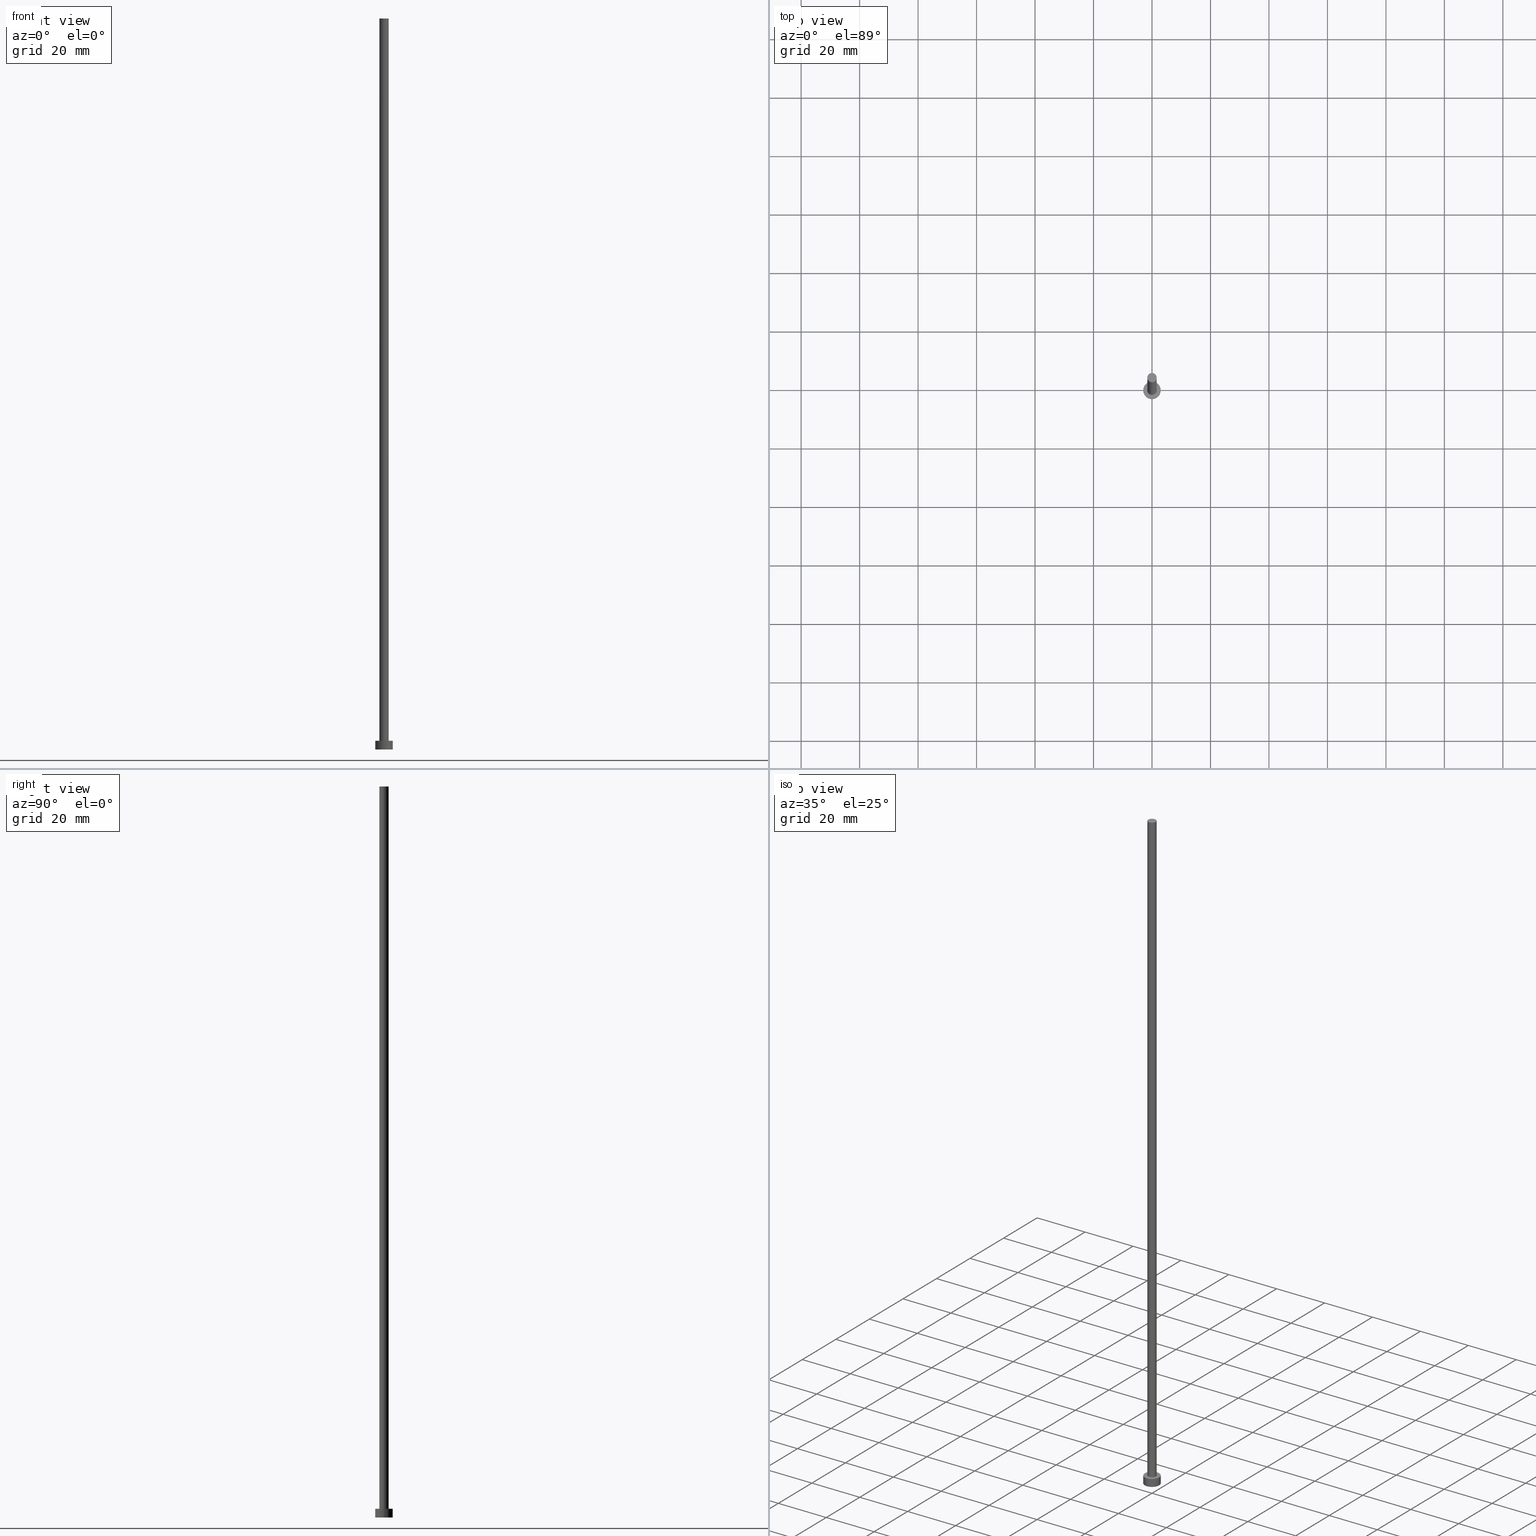
[diagram: canonical four-view strip — front | top / right | iso, engineering-drawing reading convention]
A machine part, canonical four-view strip (front | top / right | iso — engineering-drawing reading convention). The complete STEP part file that produces these views, byte-faithful:
ISO-10303-21;
HEADER;
FILE_DESCRIPTION (( 'STEP AP203' ),
    '1' );
FILE_NAME ('fafb.STEP',
    '2023-02-13T14:25:11',
    ( '' ),
    ( '' ),
    'SwSTEP 2.0',
    'SolidWorks 2019',
    '' );
FILE_SCHEMA (( 'CONFIG_CONTROL_DESIGN' ));
ENDSEC;

DATA;
#1 = DIRECTION ( 'NONE',  ( 1.000000000000000000, 0.000000000000000000, 0.000000000000000000 ) ) ;
#2 =( NAMED_UNIT ( * ) PLANE_ANGLE_UNIT ( ) SI_UNIT ( $, .RADIAN. ) );
#3 = EDGE_CURVE ( 'NONE', #244, #47, #170, .T. ) ;
#4 = PERSON_AND_ORGANIZATION_ROLE ( 'creator' ) ;
#5 = DIRECTION ( 'NONE',  ( 0.000000000000000000, 0.000000000000000000, 1.000000000000000000 ) ) ;
#6 = PRODUCT_DEFINITION_SHAPE ( 'NONE', 'NONE',  #41 ) ;
#7 = APPROVAL_STATUS ( 'not_yet_approved' ) ;
#8 = EDGE_LOOP ( 'NONE', ( #118, #171 ) ) ;
#9 = AXIS2_PLACEMENT_3D ( 'NONE', #28, #172, #104 ) ;
#10 = APPLICATION_CONTEXT ( 'configuration controlled 3d designs of mechanical parts and assemblies' ) ;
#11 = EDGE_CURVE ( 'NONE', #27, #249, #23, .T. ) ;
#12 = ORIENTED_EDGE ( 'NONE', *, *, #187, .F. ) ;
#13 = EDGE_CURVE ( 'NONE', #122, #67, #26, .T. ) ;
#14 = ORIENTED_EDGE ( 'NONE', *, *, #16, .F. ) ;
#15 = CARTESIAN_POINT ( 'NONE',  ( -1.600000000000000089, 0.000000000000000000, 3.000000000000000000 ) ) ;
#16 = EDGE_CURVE ( 'NONE', #47, #244, #137, .T. ) ;
#17 = DIRECTION ( 'NONE',  ( 0.000000000000000000, 0.000000000000000000, 1.000000000000000000 ) ) ;
#18 = LOCAL_TIME ( 15, 25, 11.00000000000000000, #162 ) ;
#19 = CARTESIAN_POINT ( 'NONE',  ( -3.000000000000000444, 0.000000000000000000, 3.000000000000000000 ) ) ;
#20 = CARTESIAN_POINT ( 'NONE',  ( 0.000000000000000000, 0.000000000000000000, 3.000000000000000000 ) ) ;
#21 = DIRECTION ( 'NONE',  ( 0.000000000000000000, 0.000000000000000000, 1.000000000000000000 ) ) ;
#22 = EDGE_CURVE ( 'NONE', #67, #248, #59, .T. ) ;
#23 = CIRCLE ( 'NONE', #57, 3.000000000000000444 ) ;
#24 = AXIS2_PLACEMENT_3D ( 'NONE', #127, #55, #1 ) ;
#25 = APPROVAL_STATUS ( 'not_yet_approved' ) ;
#26 = LINE ( 'NONE', #87, #102 ) ;
#27 = VERTEX_POINT ( 'NONE', #234 ) ;
#28 = CARTESIAN_POINT ( 'NONE',  ( 0.000000000000000000, 0.000000000000000000, 0.000000000000000000 ) ) ;
#29 = PERSON_AND_ORGANIZATION_ROLE ( 'creator' ) ;
#30 = DIRECTION ( 'NONE',  ( 1.000000000000000000, 0.000000000000000000, 0.000000000000000000 ) ) ;
#31 = EDGE_LOOP ( 'NONE', ( #165, #14 ) ) ;
#32 = DIRECTION ( 'NONE',  ( -0.000000000000000000, -0.000000000000000000, -1.000000000000000000 ) ) ;
#33 = FACE_OUTER_BOUND ( 'NONE', #66, .T. ) ;
#34 = MANIFOLD_SOLID_BREP ( 'P�idat vysunut�m3', #192 ) ;
#35 = FACE_OUTER_BOUND ( 'NONE', #146, .T. ) ;
#36 = APPROVAL_PERSON_ORGANIZATION ( #145, #253, #163 ) ;
#37 = DIRECTION ( 'NONE',  ( -0.000000000000000000, -0.000000000000000000, -1.000000000000000000 ) ) ;
#38 = DIRECTION ( 'NONE',  ( -0.000000000000000000, -0.000000000000000000, -1.000000000000000000 ) ) ;
#39 = CC_DESIGN_PERSON_AND_ORGANIZATION_ASSIGNMENT ( #189, #4, ( #161 ) ) ;
#40 = VECTOR ( 'NONE', #32, 1000.000000000000000 ) ;
#41 = PRODUCT_DEFINITION ( 'NEZN�M�', '', #161, #60 ) ;
#42 = CARTESIAN_POINT ( 'NONE',  ( 0.000000000000000000, 0.000000000000000000, 0.000000000000000000 ) ) ;
#43 = LOCAL_TIME ( 15, 25, 11.00000000000000000, #61 ) ;
#44 = APPLICATION_PROTOCOL_DEFINITION ( 'international standard', 'config_control_design', 1994, #10 ) ;
#45 = APPROVAL ( #25, 'NEUR�EN�' ) ;
#46 = COORDINATED_UNIVERSAL_TIME_OFFSET ( 1, 0, .AHEAD. ) ;
#47 = VERTEX_POINT ( 'NONE', #54 ) ;
#48 = DATE_AND_TIME ( #83, #191 ) ;
#49 = ORGANIZATION ( 'NEUR�EN�', 'NEUR�EN�', '' ) ;
#50 = AXIS2_PLACEMENT_3D ( 'NONE', #71, #217, #53 ) ;
#51 = ADVANCED_FACE ( 'NONE', ( #255, #173 ), #112, .T. ) ;
#52 = DIRECTION ( 'NONE',  ( 0.000000000000000000, 0.000000000000000000, 1.000000000000000000 ) ) ;
#53 = DIRECTION ( 'NONE',  ( 1.000000000000000000, 0.000000000000000000, 0.000000000000000000 ) ) ;
#54 = CARTESIAN_POINT ( 'NONE',  ( 3.000000000000000444, 3.673940397442060361E-16, 0.000000000000000000 ) ) ;
#55 = DIRECTION ( 'NONE',  ( 0.000000000000000000, 0.000000000000000000, 1.000000000000000000 ) ) ;
#56 = CARTESIAN_POINT ( 'NONE',  ( 0.000000000000000000, 0.000000000000000000, 250.0000000000000000 ) ) ;
#57 = AXIS2_PLACEMENT_3D ( 'NONE', #188, #52, #250 ) ;
#58 = DIRECTION ( 'NONE',  ( 1.000000000000000000, 0.000000000000000000, -0.000000000000000000 ) ) ;
#59 = CIRCLE ( 'NONE', #133, 1.600000000000000089 ) ;
#60 = DESIGN_CONTEXT ( 'detailed design', #147, 'design' ) ;
#61 = COORDINATED_UNIVERSAL_TIME_OFFSET ( 1, 0, .AHEAD. ) ;
#62 = APPROVAL_STATUS ( 'not_yet_approved' ) ;
#63 = EDGE_LOOP ( 'NONE', ( #103, #190, #166, #229 ) ) ;
#64 = APPROVAL_DATE_TIME ( #245, #205 ) ;
#65 = ORIENTED_EDGE ( 'NONE', *, *, #138, .F. ) ;
#66 = EDGE_LOOP ( 'NONE', ( #183, #125, #90, #231 ) ) ;
#67 = VERTEX_POINT ( 'NONE', #15 ) ;
#68 = EDGE_CURVE ( 'NONE', #249, #27, #76, .T. ) ;
#69 = CYLINDRICAL_SURFACE ( 'NONE', #75, 1.600000000000000089 ) ;
#70 = AXIS2_PLACEMENT_3D ( 'NONE', #220, #109, #111 ) ;
#71 = CARTESIAN_POINT ( 'NONE',  ( 0.000000000000000000, 0.000000000000000000, 250.0000000000000000 ) ) ;
#72 = PLANE ( 'NONE',  #239 ) ;
#73 = CC_DESIGN_PERSON_AND_ORGANIZATION_ASSIGNMENT ( #210, #224, ( #201 ) ) ;
#74 = DIRECTION ( 'NONE',  ( -0.000000000000000000, -0.000000000000000000, -1.000000000000000000 ) ) ;
#75 = AXIS2_PLACEMENT_3D ( 'NONE', #132, #38, #77 ) ;
#76 = CIRCLE ( 'NONE', #203, 3.000000000000000444 ) ;
#77 = DIRECTION ( 'NONE',  ( -1.000000000000000000, 0.000000000000000000, 0.000000000000000000 ) ) ;
#78 = PERSON_AND_ORGANIZATION_ROLE ( 'design_owner' ) ;
#79 = CC_DESIGN_DATE_AND_TIME_ASSIGNMENT ( #143, #204, ( #41 ) ) ;
#80 = LOCAL_TIME ( 15, 25, 11.00000000000000000, #208 ) ;
#81 = ADVANCED_FACE ( 'NONE', ( #254 ), #236, .T. ) ;
#82 = PERSON_AND_ORGANIZATION ( #235, #49 ) ;
#83 = CALENDAR_DATE ( 2023, 13, 2 ) ;
#84 = ORIENTED_EDGE ( 'NONE', *, *, #155, .T. ) ;
#85 = ADVANCED_FACE ( 'NONE', ( #92 ), #72, .T. ) ;
#86 = ORIENTED_EDGE ( 'NONE', *, *, #11, .T. ) ;
#87 = CARTESIAN_POINT ( 'NONE',  ( -1.600000000000000089, 0.000000000000000000, 250.0000000000000000 ) ) ;
#88 = ORIENTED_EDGE ( 'NONE', *, *, #11, .F. ) ;
#89 = AXIS2_PLACEMENT_3D ( 'NONE', #20, #198, #216 ) ;
#90 = ORIENTED_EDGE ( 'NONE', *, *, #187, .T. ) ;
#91 = CC_DESIGN_PERSON_AND_ORGANIZATION_ASSIGNMENT ( #181, #78, ( #202 ) ) ;
#92 = FACE_OUTER_BOUND ( 'NONE', #8, .T. ) ;
#93 = CARTESIAN_POINT ( 'NONE',  ( 0.000000000000000000, 0.000000000000000000, 0.000000000000000000 ) ) ;
#94 = PLANE ( 'NONE',  #222 ) ;
#95 = EDGE_CURVE ( 'NONE', #193, #122, #115, .T. ) ;
#96 = CARTESIAN_POINT ( 'NONE',  ( 1.600000000000000089, 1.959434878635765230E-16, 250.0000000000000000 ) ) ;
#97 = DIRECTION ( 'NONE',  ( 1.000000000000000000, 0.000000000000000000, -0.000000000000000000 ) ) ;
#98 =( LENGTH_UNIT ( ) NAMED_UNIT ( * ) SI_UNIT ( .MILLI., .METRE. ) );
#99 = APPROVAL_DATE_TIME ( #48, #45 ) ;
#100 = DIRECTION ( 'NONE',  ( 0.000000000000000000, 0.000000000000000000, 1.000000000000000000 ) ) ;
#101 = CALENDAR_DATE ( 2023, 13, 2 ) ;
#102 = VECTOR ( 'NONE', #148, 1000.000000000000000 ) ;
#103 = ORIENTED_EDGE ( 'NONE', *, *, #95, .F. ) ;
#104 = DIRECTION ( 'NONE',  ( 1.000000000000000000, 0.000000000000000000, 0.000000000000000000 ) ) ;
#105 = ORIENTED_EDGE ( 'NONE', *, *, #22, .T. ) ;
#106 = CIRCLE ( 'NONE', #142, 1.600000000000000089 ) ;
#107 = ADVANCED_FACE ( 'NONE', ( #33 ), #200, .T. ) ;
#108 = CARTESIAN_POINT ( 'NONE',  ( 0.000000000000000000, 0.000000000000000000, 250.0000000000000000 ) ) ;
#109 = DIRECTION ( 'NONE',  ( -0.000000000000000000, -0.000000000000000000, -1.000000000000000000 ) ) ;
#110 = DIRECTION ( 'NONE',  ( 1.000000000000000000, 0.000000000000000000, -0.000000000000000000 ) ) ;
#111 = DIRECTION ( 'NONE',  ( -1.000000000000000000, 0.000000000000000000, 0.000000000000000000 ) ) ;
#112 = PLANE ( 'NONE',  #121 ) ;
#113 = AXIS2_PLACEMENT_3D ( 'NONE', #219, #156, #252 ) ;
#114 = CARTESIAN_POINT ( 'NONE',  ( -3.000000000000000444, 0.000000000000000000, 3.000000000000000000 ) ) ;
#115 = CIRCLE ( 'NONE', #50, 1.600000000000000089 ) ;
#116 = MECHANICAL_CONTEXT ( 'NONE', #10, 'mechanical' ) ;
#117 = DATE_AND_TIME ( #119, #18 ) ;
#118 = ORIENTED_EDGE ( 'NONE', *, *, #130, .T. ) ;
#119 = CALENDAR_DATE ( 2023, 13, 2 ) ;
#120 = APPROVAL_ROLE ( '' ) ;
#121 = AXIS2_PLACEMENT_3D ( 'NONE', #131, #21, #58 ) ;
#122 = VERTEX_POINT ( 'NONE', #251 ) ;
#123 = EDGE_LOOP ( 'NONE', ( #88, #84, #186, #12 ) ) ;
#124 = CC_DESIGN_DATE_AND_TIME_ASSIGNMENT ( #117, #206, ( #201 ) ) ;
#125 = ORIENTED_EDGE ( 'NONE', *, *, #68, .F. ) ;
#126 =( GEOMETRIC_REPRESENTATION_CONTEXT ( 3 ) GLOBAL_UNCERTAINTY_ASSIGNED_CONTEXT ( ( #246 ) ) GLOBAL_UNIT_ASSIGNED_CONTEXT ( ( #98, #2, #159 ) ) REPRESENTATION_CONTEXT ( 'NONE', 'WORKASPACE' ) );
#127 = CARTESIAN_POINT ( 'NONE',  ( 0.000000000000000000, 0.000000000000000000, 3.000000000000000000 ) ) ;
#128 = SHAPE_DEFINITION_REPRESENTATION ( #6, #185 ) ;
#129 = DIRECTION ( 'NONE',  ( 1.000000000000000000, 0.000000000000000000, 0.000000000000000000 ) ) ;
#130 = EDGE_CURVE ( 'NONE', #122, #193, #106, .T. ) ;
#131 = CARTESIAN_POINT ( 'NONE',  ( 0.000000000000000000, 0.000000000000000000, 3.000000000000000000 ) ) ;
#132 = CARTESIAN_POINT ( 'NONE',  ( 0.000000000000000000, 0.000000000000000000, 250.0000000000000000 ) ) ;
#133 = AXIS2_PLACEMENT_3D ( 'NONE', #213, #100, #30 ) ;
#134 = CYLINDRICAL_SURFACE ( 'NONE', #113, 1.600000000000000089 ) ;
#135 = ADVANCED_FACE ( 'NONE', ( #35 ), #69, .T. ) ;
#136 = AXIS2_PLACEMENT_3D ( 'NONE', #42, #5, #139 ) ;
#137 = CIRCLE ( 'NONE', #177, 3.000000000000000444 ) ;
#138 = EDGE_CURVE ( 'NONE', #248, #67, #240, .T. ) ;
#139 = DIRECTION ( 'NONE',  ( 1.000000000000000000, 0.000000000000000000, 0.000000000000000000 ) ) ;
#140 = SECURITY_CLASSIFICATION_LEVEL ( 'unclassified' ) ;
#141 = ORIENTED_EDGE ( 'NONE', *, *, #22, .F. ) ;
#142 = AXIS2_PLACEMENT_3D ( 'NONE', #108, #199, #180 ) ;
#143 = DATE_AND_TIME ( #225, #43 ) ;
#144 = ORIENTED_EDGE ( 'NONE', *, *, #13, .T. ) ;
#145 = PERSON_AND_ORGANIZATION ( #235, #49 ) ;
#146 = EDGE_LOOP ( 'NONE', ( #226, #214, #144, #105 ) ) ;
#147 = APPLICATION_CONTEXT ( 'configuration controlled 3d designs of mechanical parts and assemblies' ) ;
#148 = DIRECTION ( 'NONE',  ( -0.000000000000000000, -0.000000000000000000, -1.000000000000000000 ) ) ;
#149 = FACE_OUTER_BOUND ( 'NONE', #31, .T. ) ;
#150 = ADVANCED_FACE ( 'NONE', ( #149 ), #94, .F. ) ;
#151 = LINE ( 'NONE', #19, #184 ) ;
#152 = LINE ( 'NONE', #96, #168 ) ;
#153 = CARTESIAN_POINT ( 'NONE',  ( -3.000000000000000444, 0.000000000000000000, 0.000000000000000000 ) ) ;
#154 = LOCAL_TIME ( 15, 25, 11.00000000000000000, #221 ) ;
#155 = EDGE_CURVE ( 'NONE', #27, #47, #179, .T. ) ;
#156 = DIRECTION ( 'NONE',  ( -0.000000000000000000, -0.000000000000000000, -1.000000000000000000 ) ) ;
#157 = APPLICATION_PROTOCOL_DEFINITION ( 'international standard', 'config_control_design', 1994, #147 ) ;
#158 = APPROVAL_PERSON_ORGANIZATION ( #182, #205, #243 ) ;
#159 =( NAMED_UNIT ( * ) SI_UNIT ( $, .STERADIAN. ) SOLID_ANGLE_UNIT ( ) );
#160 = PERSON_AND_ORGANIZATION_ROLE ( 'design_supplier' ) ;
#161 = PRODUCT_DEFINITION_FORMATION_WITH_SPECIFIED_SOURCE ( 'LIBOVOLN�', '', #202, .NOT_KNOWN. ) ;
#162 = COORDINATED_UNIVERSAL_TIME_OFFSET ( 1, 0, .AHEAD. ) ;
#163 = APPROVAL_ROLE ( '' ) ;
#164 = ADVANCED_FACE ( 'NONE', ( #196 ), #134, .T. ) ;
#165 = ORIENTED_EDGE ( 'NONE', *, *, #3, .F. ) ;
#166 = ORIENTED_EDGE ( 'NONE', *, *, #138, .T. ) ;
#167 = PERSON_AND_ORGANIZATION ( #235, #49 ) ;
#168 = VECTOR ( 'NONE', #74, 1000.000000000000000 ) ;
#169 = APPROVAL_DATE_TIME ( #242, #253 ) ;
#170 = CIRCLE ( 'NONE', #9, 3.000000000000000444 ) ;
#171 = ORIENTED_EDGE ( 'NONE', *, *, #95, .T. ) ;
#172 = DIRECTION ( 'NONE',  ( 0.000000000000000000, 0.000000000000000000, 1.000000000000000000 ) ) ;
#173 = FACE_OUTER_BOUND ( 'NONE', #209, .T. ) ;
#174 = APPROVAL_PERSON_ORGANIZATION ( #167, #45, #120 ) ;
#175 = CC_DESIGN_PERSON_AND_ORGANIZATION_ASSIGNMENT ( #82, #160, ( #161 ) ) ;
#176 = CARTESIAN_POINT ( 'NONE',  ( 3.000000000000000444, 3.673940397442060361E-16, 3.000000000000000000 ) ) ;
#177 = AXIS2_PLACEMENT_3D ( 'NONE', #230, #232, #207 ) ;
#178 = CARTESIAN_POINT ( 'NONE',  ( 1.600000000000000089, 1.959434878635765230E-16, 250.0000000000000000 ) ) ;
#179 = LINE ( 'NONE', #176, #40 ) ;
#180 = DIRECTION ( 'NONE',  ( 1.000000000000000000, 0.000000000000000000, 0.000000000000000000 ) ) ;
#181 = PERSON_AND_ORGANIZATION ( #235, #49 ) ;
#182 = PERSON_AND_ORGANIZATION ( #235, #49 ) ;
#183 = ORIENTED_EDGE ( 'NONE', *, *, #155, .F. ) ;
#184 = VECTOR ( 'NONE', #37, 1000.000000000000000 ) ;
#185 = ADVANCED_BREP_SHAPE_REPRESENTATION ( 'fafb', ( #34, #136 ), #126 ) ;
#186 = ORIENTED_EDGE ( 'NONE', *, *, #16, .T. ) ;
#187 = EDGE_CURVE ( 'NONE', #249, #244, #151, .T. ) ;
#188 = CARTESIAN_POINT ( 'NONE',  ( 0.000000000000000000, 0.000000000000000000, 3.000000000000000000 ) ) ;
#189 = PERSON_AND_ORGANIZATION ( #235, #49 ) ;
#190 = ORIENTED_EDGE ( 'NONE', *, *, #227, .T. ) ;
#191 = LOCAL_TIME ( 15, 25, 11.00000000000000000, #46 ) ;
#192 = CLOSED_SHELL ( 'NONE', ( #164, #81, #107, #51, #150, #135, #85 ) ) ;
#193 = VERTEX_POINT ( 'NONE', #178 ) ;
#194 = DIRECTION ( 'NONE',  ( 0.000000000000000000, 0.000000000000000000, 1.000000000000000000 ) ) ;
#195 = CC_DESIGN_PERSON_AND_ORGANIZATION_ASSIGNMENT ( #228, #29, ( #41 ) ) ;
#196 = FACE_OUTER_BOUND ( 'NONE', #63, .T. ) ;
#197 = CC_DESIGN_APPROVAL ( #205, ( #201 ) ) ;
#198 = DIRECTION ( 'NONE',  ( -0.000000000000000000, -0.000000000000000000, -1.000000000000000000 ) ) ;
#199 = DIRECTION ( 'NONE',  ( 0.000000000000000000, 0.000000000000000000, 1.000000000000000000 ) ) ;
#200 = CYLINDRICAL_SURFACE ( 'NONE', #70, 3.000000000000000444 ) ;
#201 = SECURITY_CLASSIFICATION ( '', '', #140 ) ;
#202 = PRODUCT ( 'fafb', 'fafb', '', ( #116 ) ) ;
#203 = AXIS2_PLACEMENT_3D ( 'NONE', #237, #215, #129 ) ;
#204 = DATE_TIME_ROLE ( 'creation_date' ) ;
#205 = APPROVAL ( #7, 'NEUR�EN�' ) ;
#206 = DATE_TIME_ROLE ( 'classification_date' ) ;
#207 = DIRECTION ( 'NONE',  ( 1.000000000000000000, 0.000000000000000000, 0.000000000000000000 ) ) ;
#208 = COORDINATED_UNIVERSAL_TIME_OFFSET ( 1, 0, .AHEAD. ) ;
#209 = EDGE_LOOP ( 'NONE', ( #247, #86 ) ) ;
#210 = PERSON_AND_ORGANIZATION ( #235, #49 ) ;
#211 = EDGE_LOOP ( 'NONE', ( #141, #65 ) ) ;
#212 = CALENDAR_DATE ( 2023, 13, 2 ) ;
#213 = CARTESIAN_POINT ( 'NONE',  ( 0.000000000000000000, 0.000000000000000000, 3.000000000000000000 ) ) ;
#214 = ORIENTED_EDGE ( 'NONE', *, *, #130, .F. ) ;
#215 = DIRECTION ( 'NONE',  ( 0.000000000000000000, 0.000000000000000000, 1.000000000000000000 ) ) ;
#216 = DIRECTION ( 'NONE',  ( -1.000000000000000000, 0.000000000000000000, 0.000000000000000000 ) ) ;
#217 = DIRECTION ( 'NONE',  ( 0.000000000000000000, 0.000000000000000000, 1.000000000000000000 ) ) ;
#218 = PRODUCT_RELATED_PRODUCT_CATEGORY ( 'detail', '', ( #202 ) ) ;
#219 = CARTESIAN_POINT ( 'NONE',  ( 0.000000000000000000, 0.000000000000000000, 250.0000000000000000 ) ) ;
#220 = CARTESIAN_POINT ( 'NONE',  ( 0.000000000000000000, 0.000000000000000000, 3.000000000000000000 ) ) ;
#221 = COORDINATED_UNIVERSAL_TIME_OFFSET ( 1, 0, .AHEAD. ) ;
#222 = AXIS2_PLACEMENT_3D ( 'NONE', #93, #17, #110 ) ;
#223 = CC_DESIGN_APPROVAL ( #45, ( #161 ) ) ;
#224 = PERSON_AND_ORGANIZATION_ROLE ( 'classification_officer' ) ;
#225 = CALENDAR_DATE ( 2023, 13, 2 ) ;
#226 = ORIENTED_EDGE ( 'NONE', *, *, #227, .F. ) ;
#227 = EDGE_CURVE ( 'NONE', #193, #248, #152, .T. ) ;
#228 = PERSON_AND_ORGANIZATION ( #235, #49 ) ;
#229 = ORIENTED_EDGE ( 'NONE', *, *, #13, .F. ) ;
#230 = CARTESIAN_POINT ( 'NONE',  ( 0.000000000000000000, 0.000000000000000000, 0.000000000000000000 ) ) ;
#231 = ORIENTED_EDGE ( 'NONE', *, *, #3, .T. ) ;
#232 = DIRECTION ( 'NONE',  ( 0.000000000000000000, 0.000000000000000000, 1.000000000000000000 ) ) ;
#233 = CC_DESIGN_APPROVAL ( #253, ( #41 ) ) ;
#234 = CARTESIAN_POINT ( 'NONE',  ( 3.000000000000000444, 3.673940397442060361E-16, 3.000000000000000000 ) ) ;
#235 = PERSON ( 'NEUR�EN�', 'NEUR�EN�', 'NEUR�EN�', ('NEUR�EN�'), ('NEUR�EN�'), ('NEUR�EN�') ) ;
#236 = CYLINDRICAL_SURFACE ( 'NONE', #89, 3.000000000000000444 ) ;
#237 = CARTESIAN_POINT ( 'NONE',  ( 0.000000000000000000, 0.000000000000000000, 3.000000000000000000 ) ) ;
#238 = CARTESIAN_POINT ( 'NONE',  ( 1.600000000000000089, 1.959434878635765230E-16, 3.000000000000000000 ) ) ;
#239 = AXIS2_PLACEMENT_3D ( 'NONE', #56, #194, #97 ) ;
#240 = CIRCLE ( 'NONE', #24, 1.600000000000000089 ) ;
#241 = CC_DESIGN_SECURITY_CLASSIFICATION ( #201, ( #161 ) ) ;
#242 = DATE_AND_TIME ( #212, #154 ) ;
#243 = APPROVAL_ROLE ( '' ) ;
#244 = VERTEX_POINT ( 'NONE', #153 ) ;
#245 = DATE_AND_TIME ( #101, #80 ) ;
#246 = UNCERTAINTY_MEASURE_WITH_UNIT (LENGTH_MEASURE( 1.000000000000000082E-05 ), #98, 'distance_accuracy_value', 'NONE');
#247 = ORIENTED_EDGE ( 'NONE', *, *, #68, .T. ) ;
#248 = VERTEX_POINT ( 'NONE', #238 ) ;
#249 = VERTEX_POINT ( 'NONE', #114 ) ;
#250 = DIRECTION ( 'NONE',  ( 1.000000000000000000, 0.000000000000000000, 0.000000000000000000 ) ) ;
#251 = CARTESIAN_POINT ( 'NONE',  ( -1.600000000000000089, 0.000000000000000000, 250.0000000000000000 ) ) ;
#252 = DIRECTION ( 'NONE',  ( -1.000000000000000000, 0.000000000000000000, 0.000000000000000000 ) ) ;
#253 = APPROVAL ( #62, 'NEUR�EN�' ) ;
#254 = FACE_OUTER_BOUND ( 'NONE', #123, .T. ) ;
#255 = FACE_BOUND ( 'NONE', #211, .T. ) ;
ENDSEC;
END-ISO-10303-21;
